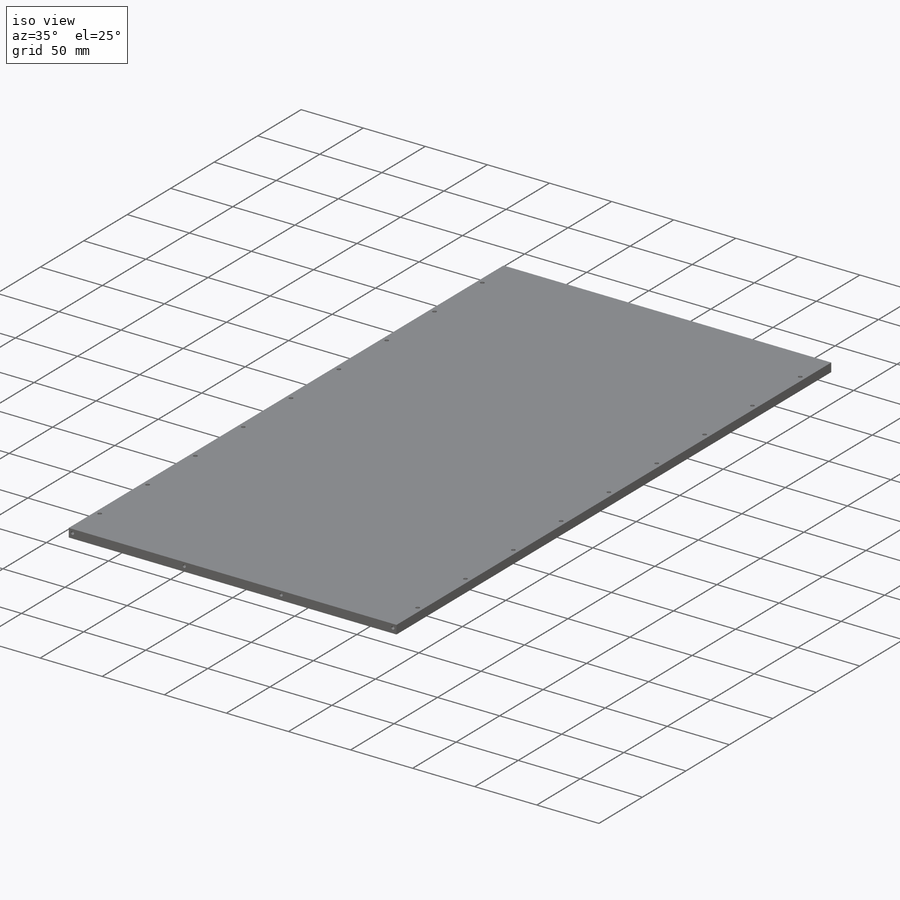
[diagram: iso view]
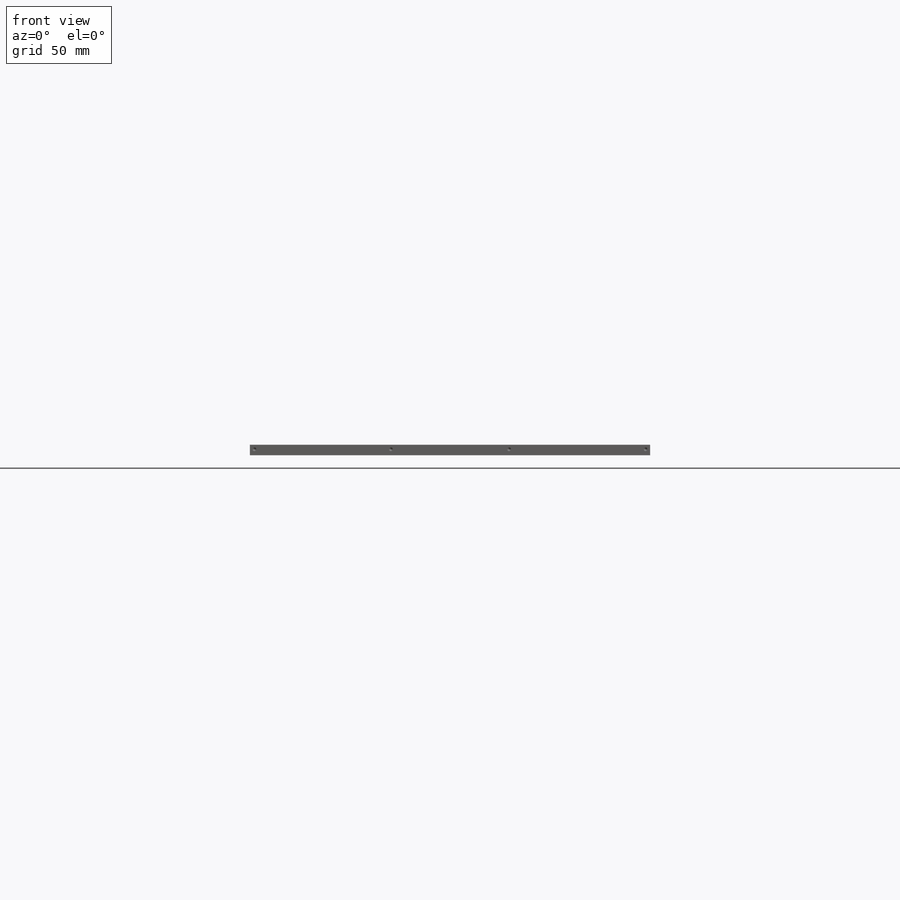
[diagram: front view]
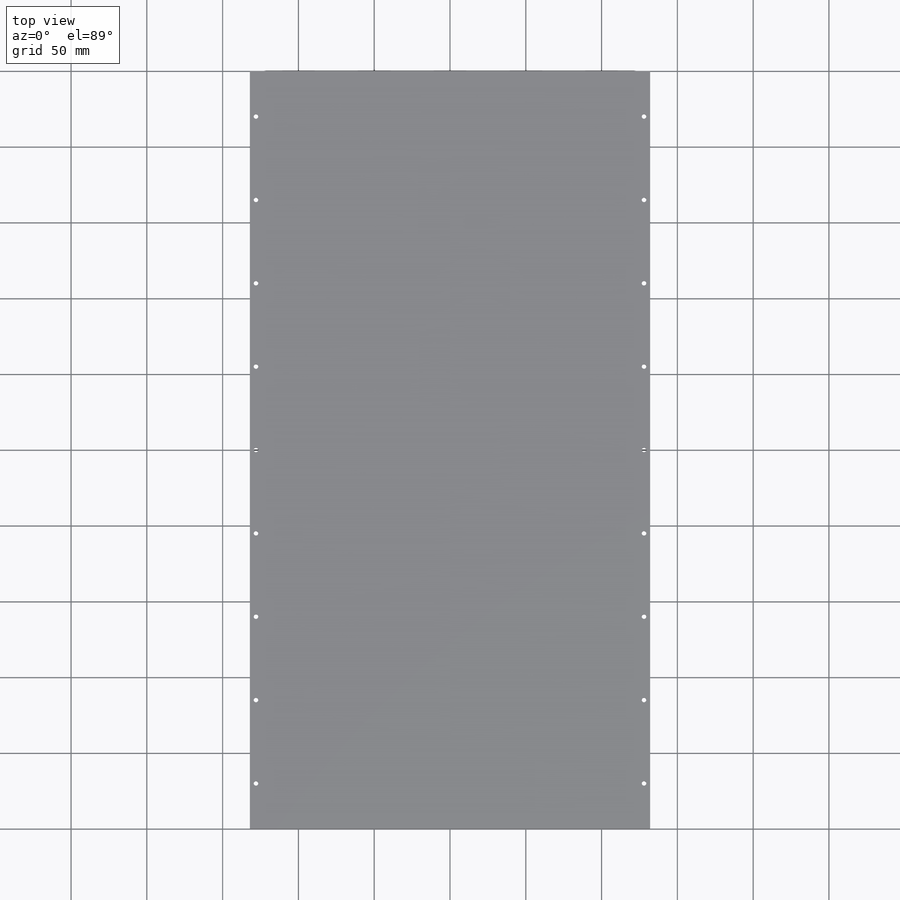
[diagram: top view]
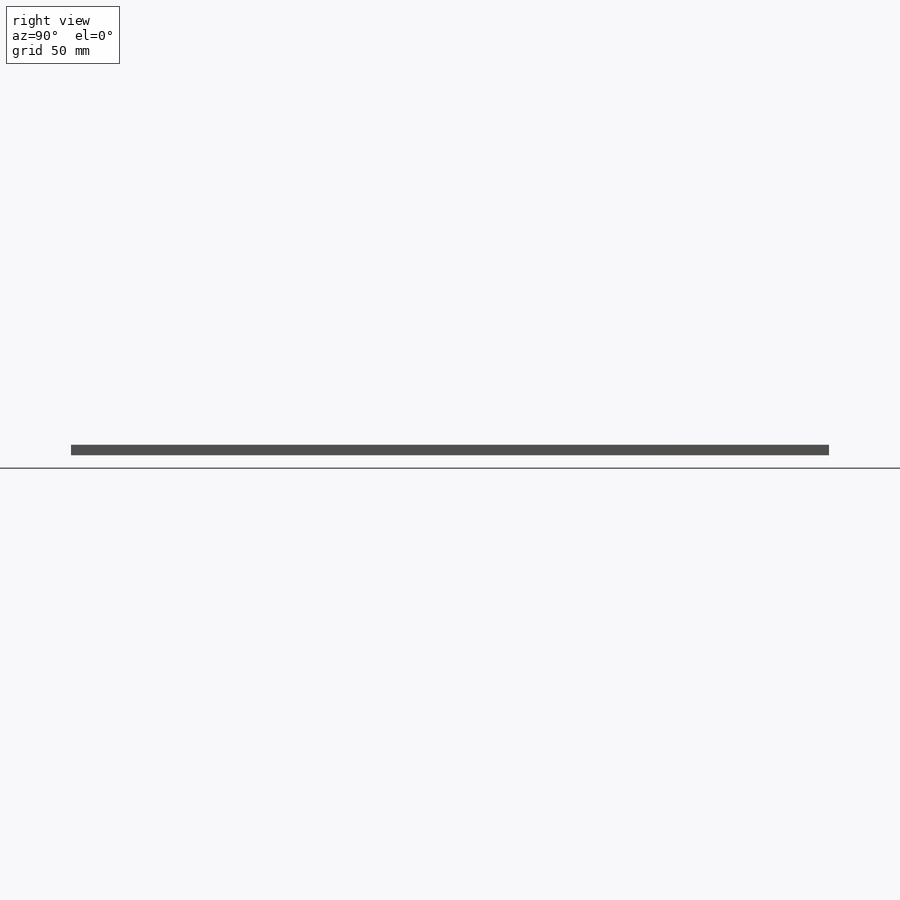
[diagram: right view]
SOLIDWORKS PART (.sldprt)
format: sldprt  version: not decoded by parser v0  size: 384,000 bytes
history: native  units: mm
features: sketch x7, thread x4, cut_extrude x2, hole x2, mirror x2, material x1, extrude x1, fillet x1 (+12 scaffold rows collapsed)
feature tree (32):
  scaffold x12  (default folders/planes/origin — collapsed)
  material  "2014 Alloy"
  sketch  "Sketch1"  dims[c1.D1=~81.142172mm c1.D2=~120.870966mm c2.D1=264.0mm c2.D2=500.0mm]
  extrude  "Boss-Extrude1"  Depth=7mm
  sketch  "Sketch2"  dims[c1.D3=10.0mm c1.D6=10.0mm c1.D1=10.0mm c1.D2=10.0mm c1.D4=~216.634835mm c2.D2=10.0mm c2.D4=10.0mm c2.D5=10.0mm c2.D7=1.0mm c2.D8=1.0mm]
  cut_extrude  "Cut-Extrude1"  Depth=1mm
  hole  "Ø3.0mm Dowel Hole1"  Diameter=3mm Depth=15mm
  sketch  "Sketch4"  dims[D1=30.0mm D2=55.0mm D3=55.0mm D4=55.0mm D5=4.0mm D6=~294.07402mm]
  sketch  "Sketch3"  dims[hole-wizard template sketch: 50 standard entries collapsed; hole parameters above]
  mirror  "Mirror1"
  mirror  "Mirror2"
  sketch  "Sketch5"  dims[c1.D1=~131.74064mm c1.D2=~252.653282mm c2.D1=~91.135648mm c2.D2=~181.368963mm c3.D1=~99.256646mm c3.D2=~180.081714mm c4.D1=40.0mm c4.D2=40.0mm c4.D3=40.0mm c4.D4=40.0mm c4.D5=35.0mm c4.D6=35.0mm c4.D7=~106.705324mm c4.D8=120.0mm c4.D9=~112.945628mm c5.D7=120.0mm c5.D9=~228.114007mm c5.D11=~216.93789mm c5.D3=~1.383376mm c5.D2=20.0mm c6.D3=20.0mm c6.D4=20.0mm c6.D5=10.0mm c6.D7=~94.374827mm c6.D1=20.0mm c6.D6=20.0mm c7.D7=35.0mm c7.D9=35.0mm c7.D10=10.0mm c7.D1=20.0mm c7.D2=20.0mm c7.D3=20.0mm c7.D4=20.0mm c7.D5=10.0mm c7.D6=150.0mm c8.D7=10.0mm c8.D6=10.0mm c8.D9=5.0mm c8.D10=5.0mm]
  cut_extrude  "Cut-Extrude2"  Depth=6mm
  fillet  "Fillet1"  Radius=4mm
  hole  "M3 Tapped Hole2"  Diameter=2.5mm Depth=7.5mm
  sketch  "Sketch7"  dims[D1=3.0mm D2=3.0mm D3=90.0mm D4=90.0mm D5=3.0mm]
  sketch  "Sketch6"  dims[hole-wizard template sketch: 50 standard entries collapsed; hole parameters above]
  thread  "Hole Thread5"  Diameter=6mm  [1 undecoded]
  thread  "Hole Thread6"  Diameter=6mm  [1 undecoded]
  thread  "Hole Thread7"  Diameter=6mm  [1 undecoded]
  thread  "Hole Thread8"  Diameter=6mm  [1 undecoded]
decode coverage: 17 of 19 modeling features carry decoded parameters
note: ~ marks probable driven/reference dimensions
note: 4 parameter values undecoded
note: suppression state not decoded; provenance and decode notes live in map.json
